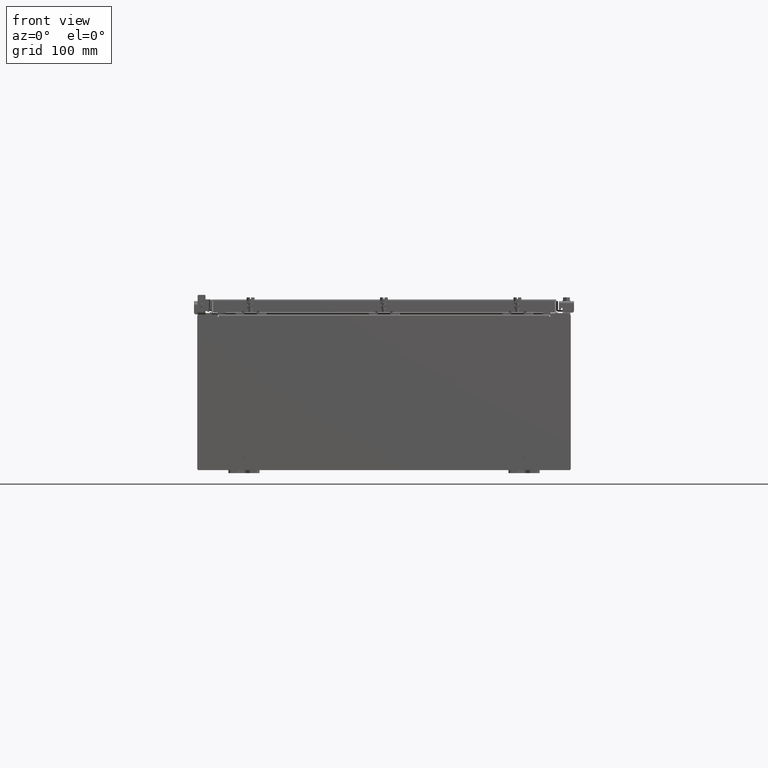
[diagram: clean part render]
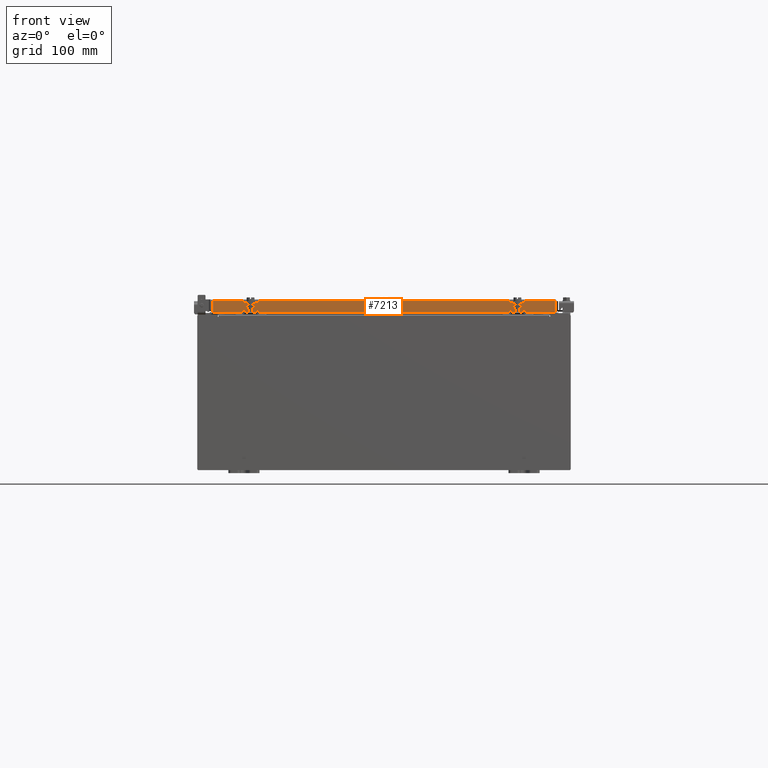
[diagram: same view with one face highlighted and labeled with its STEP entity id]
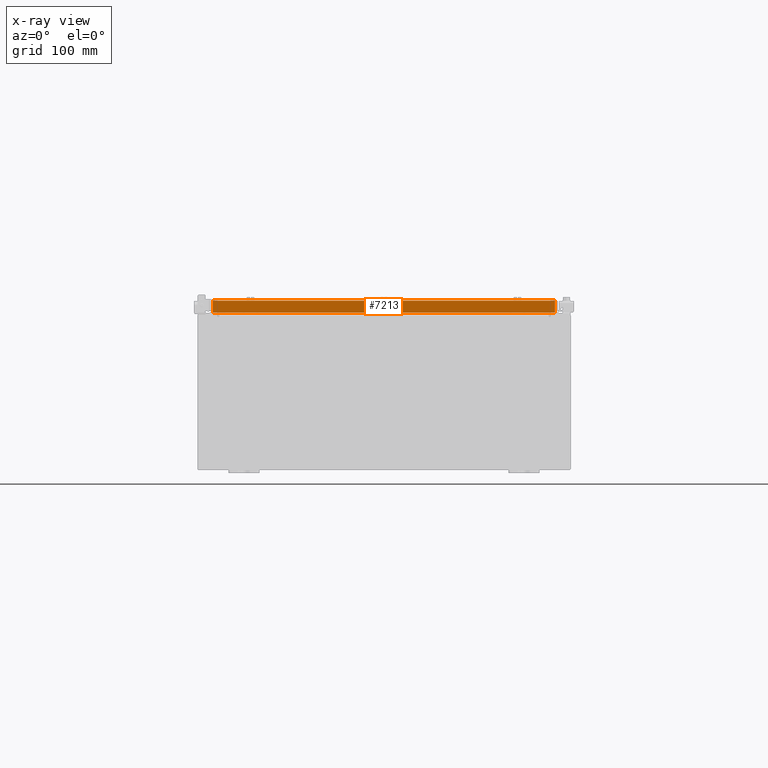
[diagram: x-ray of the same camera — body ghosted, the highlighted face saturated]
A machine part, front view. The second image highlights one B-rep face of the part: STEP entity #7213.
The next image is the same camera in x-ray: the body ghosted, the highlighted face saturated — about 0% of this face is hidden behind the body in this view.
In plain terms, the highlighted planar face has unit normal (-0, 1, -0).
Its self-contained STEP definition (entity closure, byte-faithful):
#60 = EDGE_CURVE ( 'NONE', #8894, #15505, #3748, .T. ) ;
#187 = DIRECTION ( 'NONE',  ( -1.000000000000000000, 0.0000000000000000000, 0.0000000000000000000 ) ) ;
#729 = CARTESIAN_POINT ( 'NONE',  ( 11.07799999999999600, -17.09400000000000100, -0.08770000000000007000 ) ) ;
#1939 = FACE_OUTER_BOUND ( 'NONE', #2118, .T. ) ;
#2092 = CARTESIAN_POINT ( 'NONE',  ( 11.07799999999999600, -17.09400000000000100, -0.8499999999999996400 ) ) ;
#2118 = EDGE_LOOP ( 'NONE', ( #9870, #7229, #19116, #7017, #21213, #9653 ) ) ;
#2472 = EDGE_CURVE ( 'NONE', #19253, #15505, #14493, .T. ) ;
#2806 = CARTESIAN_POINT ( 'NONE',  ( 10.23915786437626700, -17.09399999999999800, -0.8500000000000012000 ) ) ;
#3748 = LINE ( 'NONE', #19420, #4323 ) ;
#4323 = VECTOR ( 'NONE', #19344, 39.37007874015748100 ) ;
#4346 = CARTESIAN_POINT ( 'NONE',  ( -10.23915786437627100, -17.09399999999999800, -0.8500000000000012000 ) ) ;
#4963 = PLANE ( 'NONE',  #19778 ) ;
#5222 = CARTESIAN_POINT ( 'NONE',  ( 10.98915786437626700, -17.09400000000000100, -0.8499999999999996400 ) ) ;
#5257 = VERTEX_POINT ( 'NONE', #6386 ) ;
#5564 = CARTESIAN_POINT ( 'NONE',  ( 10.23915786437626700, -17.09399999999999800, -0.8500000000000012000 ) ) ;
#5929 = EDGE_CURVE ( 'NONE', #19253, #5257, #16724, .T. ) ;
#6122 = EDGE_CURVE ( 'NONE', #5257, #16102, #22904, .T. ) ;
#6181 = DIRECTION ( 'NONE',  ( 1.000000000000000000, 6.951393977153906300E-032, -9.864047639156036200E-017 ) ) ;
#6386 = CARTESIAN_POINT ( 'NONE',  ( 10.98915786437626500, -17.09400000000000100, -0.08769999999999897300 ) ) ;
#6612 = VERTEX_POINT ( 'NONE', #2806 ) ;
#7017 = ORIENTED_EDGE ( 'NONE', *, *, #19897, .F. ) ;
#7055 = CARTESIAN_POINT ( 'NONE',  ( -10.98915786437626900, -17.09400000000000100, 4.844676449176231400E-014 ) ) ;
#7138 = CARTESIAN_POINT ( 'NONE',  ( -10.98915786437627200, -17.09400000000000100, -0.08769999999999787700 ) ) ;
#7213 = ADVANCED_FACE ( 'NONE', ( #1939 ), #4963, .F. ) ;
#7229 = ORIENTED_EDGE ( 'NONE', *, *, #2472, .T. ) ;
#8316 = VECTOR ( 'NONE', #14746, 39.37007874015748100 ) ;
#8599 = DIRECTION ( 'NONE',  ( -3.475696988576954900E-031, 1.000000000000000000, -2.818880942772360500E-015 ) ) ;
#8614 = DIRECTION ( 'NONE',  ( -0.0000000000000000000, -2.818880942772360500E-015, -1.000000000000000000 ) ) ;
#8894 = VERTEX_POINT ( 'NONE', #4346 ) ;
#9105 = VECTOR ( 'NONE', #16088, 39.37007874015748100 ) ;
#9653 = ORIENTED_EDGE ( 'NONE', *, *, #6122, .F. ) ;
#9870 = ORIENTED_EDGE ( 'NONE', *, *, #5929, .F. ) ;
#10856 = CARTESIAN_POINT ( 'NONE',  ( -10.98915786437627200, -17.09400000000000100, -0.8499999999999969800 ) ) ;
#11729 = EDGE_CURVE ( 'NONE', #16102, #6612, #12578, .T. ) ;
#11923 = VECTOR ( 'NONE', #6181, 39.37007874015748100 ) ;
#12272 = CARTESIAN_POINT ( 'NONE',  ( 10.98915786437626700, -17.09400000000000100, -0.07469999999999978000 ) ) ;
#12578 = LINE ( 'NONE', #2092, #8316 ) ;
#13325 = VECTOR ( 'NONE', #8614, 39.37007874015748100 ) ;
#13913 = VECTOR ( 'NONE', #187, 39.37007874015748100 ) ;
#14493 = LINE ( 'NONE', #7055, #9105 ) ;
#14746 = DIRECTION ( 'NONE',  ( -1.000000000000000000, 4.379057701015053300E-047, 1.233005954894504400E-016 ) ) ;
#15505 = VERTEX_POINT ( 'NONE', #10856 ) ;
#16088 = DIRECTION ( 'NONE',  ( 0.0000000000000000000, -2.818880942772360500E-015, -1.000000000000000000 ) ) ;
#16102 = VERTEX_POINT ( 'NONE', #5222 ) ;
#16724 = LINE ( 'NONE', #729, #11923 ) ;
#18740 = LINE ( 'NONE', #5564, #13913 ) ;
#19116 = ORIENTED_EDGE ( 'NONE', *, *, #60, .F. ) ;
#19253 = VERTEX_POINT ( 'NONE', #7138 ) ;
#19344 = DIRECTION ( 'NONE',  ( -1.000000000000000000, 4.379057701015053300E-047, 1.233005954894504400E-016 ) ) ;
#19420 = CARTESIAN_POINT ( 'NONE',  ( 11.07799999999999600, -17.09400000000000100, -0.8499999999999996400 ) ) ;
#19427 = CARTESIAN_POINT ( 'NONE',  ( 5.941356432273447100E-030, -17.09400000000000100, 4.844676449176231400E-014 ) ) ;
#19778 = AXIS2_PLACEMENT_3D ( 'NONE', #19427, #8599, #21221 ) ;
#19897 = EDGE_CURVE ( 'NONE', #6612, #8894, #18740, .T. ) ;
#21213 = ORIENTED_EDGE ( 'NONE', *, *, #11729, .F. ) ;
#21221 = DIRECTION ( 'NONE',  ( 0.0000000000000000000, 2.818880942772360500E-015, 1.000000000000000000 ) ) ;
#22904 = LINE ( 'NONE', #12272, #13325 ) ;